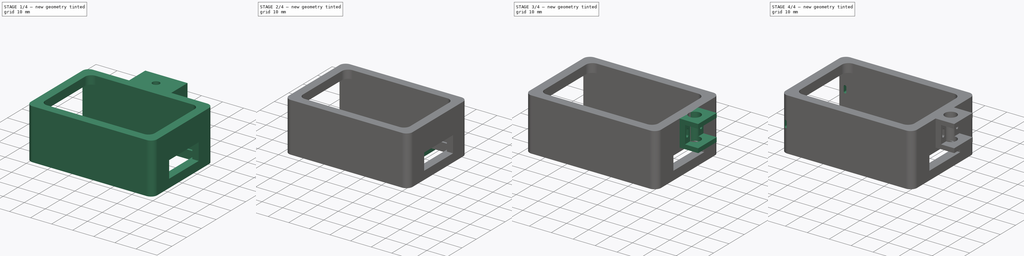
[diagram: build sequence overview — one tinted view per stage of 4, left to right]
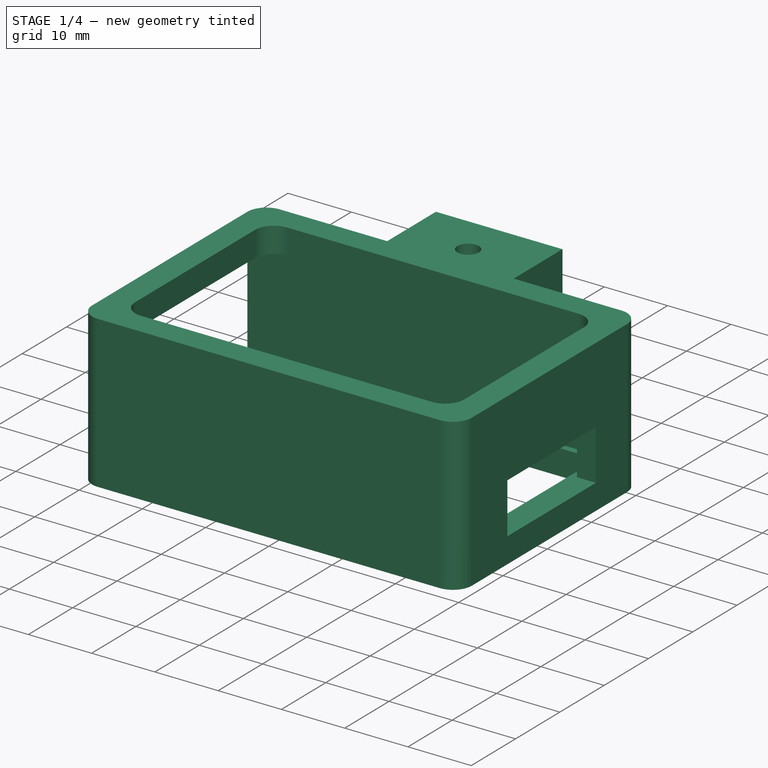
[diagram: stage 1 of 4 — iso view after this stage's code; geometry added in this stage tinted green]
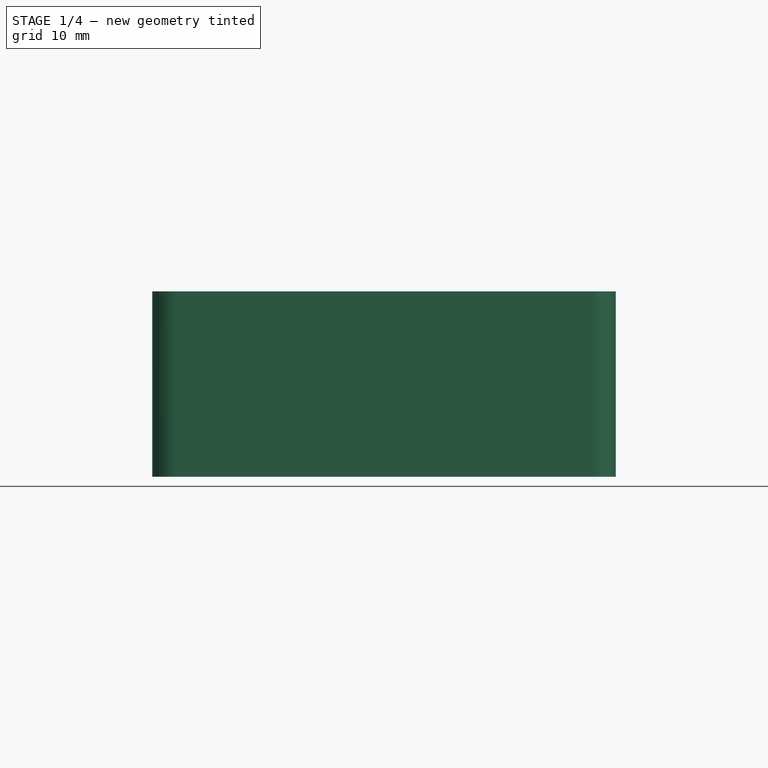
[diagram: stage 1 of 4 — front view after this stage's code; geometry added in this stage tinted green]
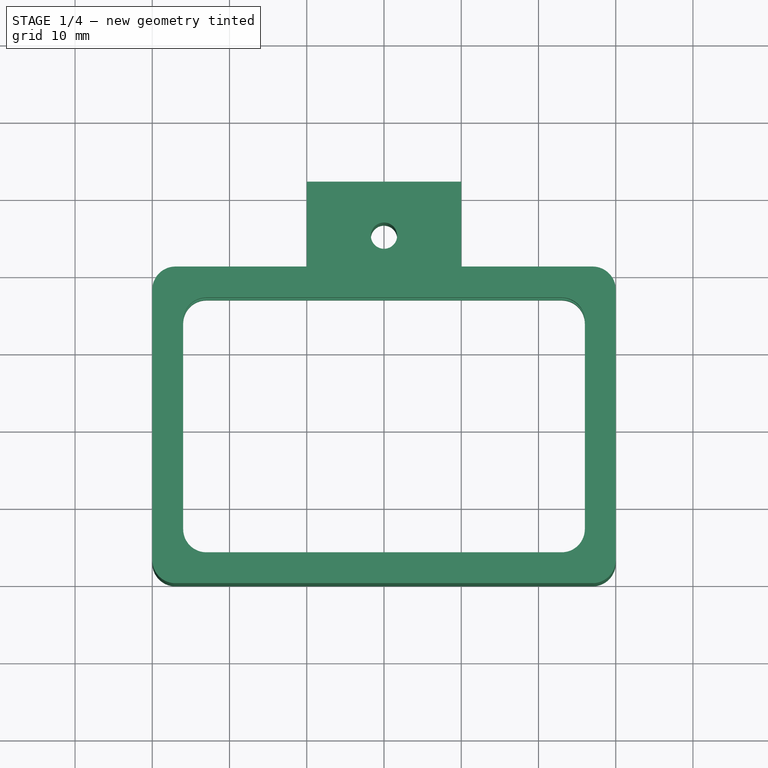
[diagram: stage 1 of 4 — top view after this stage's code; geometry added in this stage tinted green]
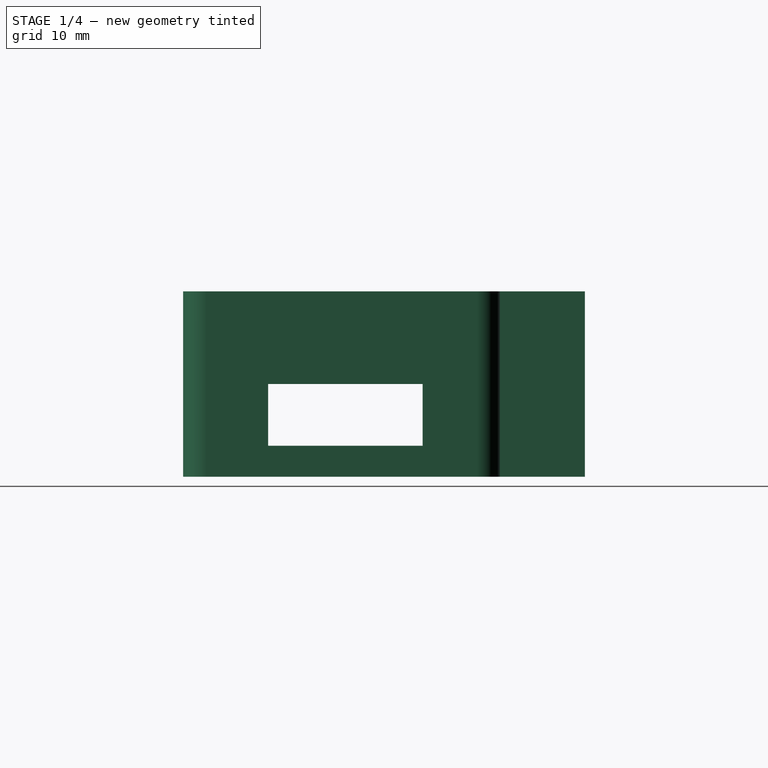
[diagram: stage 1 of 4 — right view after this stage's code; geometry added in this stage tinted green]
FCSTD DOCUMENT  (FreeCAD 0.14R3700 (Git))
Label: RemotoControlBoxV1
License: CC-BY 3.0
LicenseURL: http://creativecommons.org/licenses/by/3.0/
objects: Sketcher::SketchObject×13, PartDesign::Pocket×10, PartDesign::Pad×3
note: 39 computed .brp shape members not serialized (recipe doc carries the construction recipe); baked Part::Feature solids carry a one-line shape summary decoded from their .brp

FEATURE [Sketcher::SketchObject] Sketch
  sketch-geometry (33):
    g0: LineSegment StartX=7 StartY=4 StartZ=0 EndX=53 EndY=4 EndZ=0
    g1: LineSegment StartX=56 StartY=7 StartZ=0 EndX=56 EndY=34 EndZ=0
    g2: LineSegment StartX=53 StartY=37 StartZ=0 EndX=7 EndY=37 EndZ=0
    g3: LineSegment StartX=4 StartY=34 StartZ=0 EndX=4 EndY=7 EndZ=0
    g4: LineSegment StartX=3 StartY=41 StartZ=0 EndX=20 EndY=41 EndZ=0
    g5: LineSegment StartX=60 StartY=38 StartZ=0 EndX=60 EndY=3 EndZ=0
    g6: LineSegment StartX=57 StartY=0 StartZ=0 EndX=3 EndY=0 EndZ=0
    g7: LineSegment StartX=0 StartY=3 StartZ=0 EndX=0 EndY=38 EndZ=0
    g8: ArcOfCircle CenterX=7 CenterY=7 CenterZ=0 NormalX=0 NormalY=0 NormalZ=1 Radius=3 StartAngle=3.14159 EndAngle=4.71239
    g9: ArcOfCircle CenterX=7 CenterY=34 CenterZ=0 NormalX=0 NormalY=0 NormalZ=1 Radius=3 StartAngle=1.5708 EndAngle=3.14159
    g10: ArcOfCircle CenterX=3 CenterY=38 CenterZ=0 NormalX=0 NormalY=0 NormalZ=1 Radius=3 StartAngle=1.5708 EndAngle=3.14159
    g11: ArcOfCircle CenterX=57 CenterY=38 CenterZ=0 NormalX=0 NormalY=0 NormalZ=1 Radius=3 StartAngle=0 EndAngle=1.5708
    g12: ArcOfCircle CenterX=53 CenterY=34 CenterZ=0 NormalX=0 NormalY=0 NormalZ=1 Radius=3 StartAngle=0 EndAngle=1.5708
    g13: ArcOfCircle CenterX=53 CenterY=7 CenterZ=0 NormalX=0 NormalY=0 NormalZ=1 Radius=3 StartAngle=4.71239 EndAngle=6.28319
    g14: ArcOfCircle CenterX=57 CenterY=3 CenterZ=0 NormalX=0 NormalY=0 NormalZ=1 Radius=3 StartAngle=4.71239 EndAngle=6.28319
    g15: ArcOfCircle CenterX=3 CenterY=3 CenterZ=0 NormalX=0 NormalY=0 NormalZ=1 Radius=3 StartAngle=3.14159 EndAngle=4.71239
    g16: LineSegment [constr] StartX=4 StartY=7 StartZ=0 EndX=4 EndY=4 EndZ=0
    g17: LineSegment [constr] StartX=4 StartY=4 StartZ=0 EndX=7 EndY=4 EndZ=0
    g18: LineSegment [constr] StartX=4 StartY=34 StartZ=0 EndX=4 EndY=37 EndZ=0
    g19: LineSegment [constr] StartX=4 StartY=37 StartZ=0 EndX=7 EndY=37 EndZ=0
    g20: LineSegment [constr] StartX=53 StartY=37 StartZ=0 EndX=56 EndY=37 EndZ=0
    g21: LineSegment [constr] StartX=56 StartY=37 StartZ=0 EndX=56 EndY=34 EndZ=0
    g22: LineSegment [constr] StartX=56 StartY=7 StartZ=0 EndX=56 EndY=4 EndZ=0
    g23: LineSegment [constr] StartX=56 StartY=4 StartZ=0 EndX=53 EndY=4 EndZ=0
    g24: LineSegment [constr] StartX=3 StartY=0 StartZ=0 EndX=0 EndY=0 EndZ=0
    g25: LineSegment [constr] StartX=0 StartY=0 StartZ=0 EndX=0 EndY=3 EndZ=0
    g26: LineSegment [constr] StartX=57 StartY=41 StartZ=0 EndX=60 EndY=41 EndZ=0
    g27: LineSegment [constr] StartX=60 StartY=41 StartZ=0 EndX=60 EndY=38 EndZ=0
    g28: LineSegment StartX=20 StartY=52 StartZ=0 EndX=40 EndY=52 EndZ=0
    g29: LineSegment StartX=40 StartY=52 StartZ=0 EndX=40 EndY=41 EndZ=0
    g30: LineSegment StartX=20 StartY=41 StartZ=0 EndX=20 EndY=52 EndZ=0
    g31: LineSegment StartX=40 StartY=41 StartZ=0 EndX=57 EndY=41 EndZ=0
    g32: Circle CenterX=30 CenterY=45 CenterZ=0 NormalX=0 NormalY=0 NormalZ=1 Radius=1.7
  constraints (83):
    c: Horizontal(g0)
    c: Horizontal(g2)
    c: Vertical(g1)
    c: Vertical(g3)
    c: Horizontal(g4)
    c: Horizontal(g6)
    c: Vertical(g5)
    c: Vertical(g7)
    c: Tangent(g3,g8)
    c: Tangent(g0,g8)
    c: Tangent(g3,g9)
    c: Tangent(g2,g9)
    c: Tangent(g7,g10)
    c: Tangent(g4,g10)
    c: Tangent(g31,g11)
    c: Tangent(g5,g11)
    c: Tangent(g2,g12)
    c: Tangent(g1,g12)
    c: Tangent(g0,g13)
    c: Tangent(g1,g13)
    c: Tangent(g6,g14)
    c: Tangent(g5,g14)
    c: Tangent(g7,g15)
    c: Tangent(g6,g15)
    c: Radius(g15) = 3
    c: Equal(g15,g8)
    c: Equal(g8,g9)
    c: Equal(g9,g10)
    c: Equal(g10,g12)
    c: Equal(g12,g11)
    c: Equal(g11,g13)
    c: Equal(g13,g14)
    c: Coincident(g16,g17)
    c: Coincident(g18,g19)
    c: Coincident(g20,g21)
    c: Horizontal(g20)
    c: Vertical(g21)
    c: Coincident(g22,g23)
    c: Horizontal(g23)
    c: Vertical(g22)
    c: Vertical(g16)
    c: Vertical(g18)
    c: Horizontal(g19)
    c: Horizontal(g17)
    c: Coincident(g16,g3)
    c: Coincident(g0,g17)
    c: Coincident(g18,g3)
    c: Coincident(g19,g2)
    c: Coincident(g20,g2)
    c: Coincident(g0,g23)
    c: Coincident(g1,g22)
    c: Coincident(g1,g21)
    c: Coincident(g24,g25)
    c: Horizontal(g24)
    c: Vertical(g25)
    c: Coincident(g26,g27)
    c: Horizontal(g26)
    c: Vertical(g27)
    c: Coincident(g7,g25)
    c: Coincident(g24,g6)
    c: Coincident(g26,g31)
    c: Coincident(g5,g27)
    c: DistanceX(g20,g26) = 4
    c: DistanceY(g2,g31) = 4
    c: DistanceX(g7,g3) = 4
    c: DistanceY(g6,g0) = 4
    c: DistanceX(g16,g22) = 52
    c: DistanceY(g16,g18) = 33
    c: Coincident(g24,g-1)
    c: Coincident(g28,g29)
    c: Coincident(g30,g28)
    c: Horizontal(g28)
    c: Vertical(g29)
    c: Vertical(g30)
    c: Coincident(g4,g30)
    c: Coincident(g31,g29)
    c: Tangent(g4,g31)
    c: DistanceY(g28,g29) = -11
    c: DistanceX(g4,g29) = 20
    c: DistanceX(g26,g28) = -20
    c: Radius(g32) = 1.7
    c: DistanceY(g32,g28) = 7
    c: DistanceX(g28,g32) = 10
FEATURE [PartDesign::Pad] Pad
  Length = 24
  Length2 = 3
  Sketch = -> Sketch
  Type = 0
FEATURE [Sketcher::SketchObject] Sketch001
  ExternalGeometry = -> [Pad]
  Placement = pos=(0,0,0) rot=(0.57735,-0.57735,-0.57735;2.0944rad)
  Support = -> Pad [Face1]
  sketch-geometry (4):
    g0: LineSegment StartX=-38 StartY=20 StartZ=0 EndX=-3 EndY=20 EndZ=0
    g1: LineSegment StartX=-3 StartY=20 StartZ=0 EndX=-3 EndY=4 EndZ=0
    g2: LineSegment StartX=-3 StartY=4 StartZ=0 EndX=-38 EndY=4 EndZ=0
    g3: LineSegment StartX=-38 StartY=4 StartZ=0 EndX=-38 EndY=20 EndZ=0
  constraints (12):
    c: Coincident(g0,g1)
    c: Coincident(g1,g2)
    c: Coincident(g2,g3)
    c: Coincident(g3,g0)
    c: Horizontal(g0)
    c: Horizontal(g2)
    c: Vertical(g1)
    c: Vertical(g3)
    c: PointOnObject(g1,g-4)
    c: PointOnObject(g2,g-3)
    c: DistanceY(g2,g-3) = -4
    c: DistanceY(g-4,g0) = -4
FEATURE [PartDesign::Pocket] Pocket
  Length = 57
  Sketch = -> Sketch001
  Type = 0
FEATURE [Sketcher::SketchObject] Sketch002
  Placement = pos=(60,0,0) rot=(0.57735,0.57735,0.57735;2.0944rad)
  Support = -> Pocket [Face12]
  sketch-geometry (4):
    g0: LineSegment StartX=11 StartY=12 StartZ=0 EndX=31 EndY=12 EndZ=0
    g1: LineSegment StartX=31 StartY=12 StartZ=0 EndX=31 EndY=4 EndZ=0
    g2: LineSegment StartX=31 StartY=4 StartZ=0 EndX=11 EndY=4 EndZ=0
    g3: LineSegment StartX=11 StartY=4 StartZ=0 EndX=11 EndY=12 EndZ=0
  constraints (9):
    c: Coincident(g0,g1)
    c: Coincident(g1,g2)
    c: Coincident(g2,g3)
    c: Coincident(g3,g0)
    c: Horizontal(g0)
    c: Horizontal(g2)
    c: Vertical(g1)
    c: Vertical(g3)
    c: DistanceY(g0,g2) = -8
FEATURE [PartDesign::Pocket] Pocket001
  Length = 5
  Sketch = -> Sketch002
  Type = 0
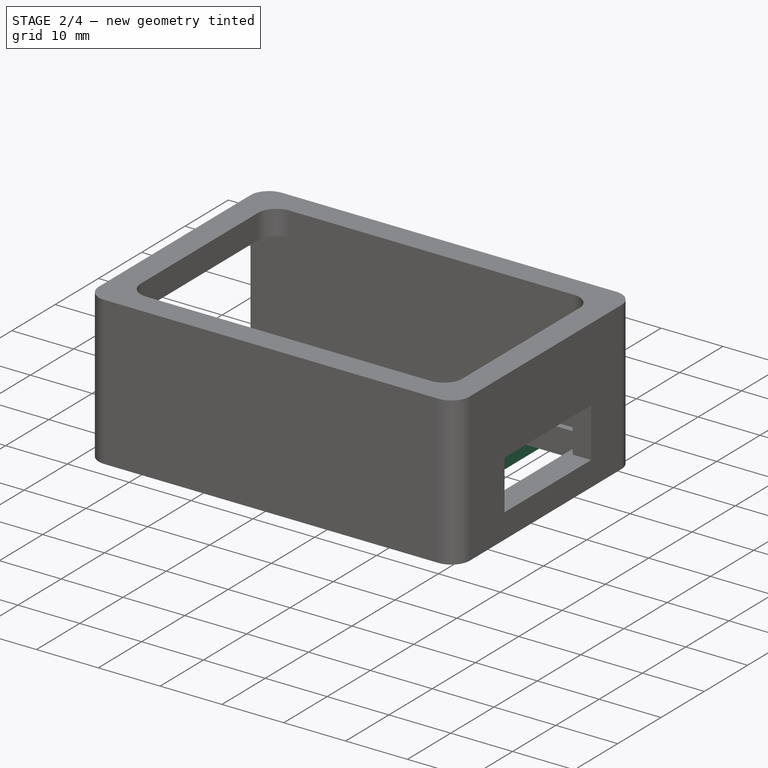
[diagram: stage 2 of 4 — iso view after this stage's code; geometry added in this stage tinted green]
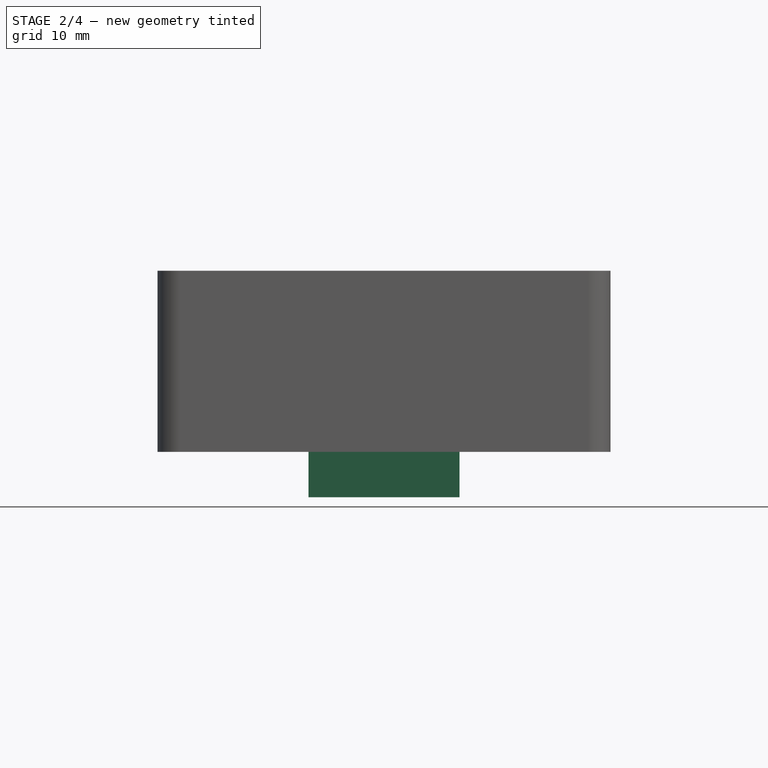
[diagram: stage 2 of 4 — front view after this stage's code; geometry added in this stage tinted green]
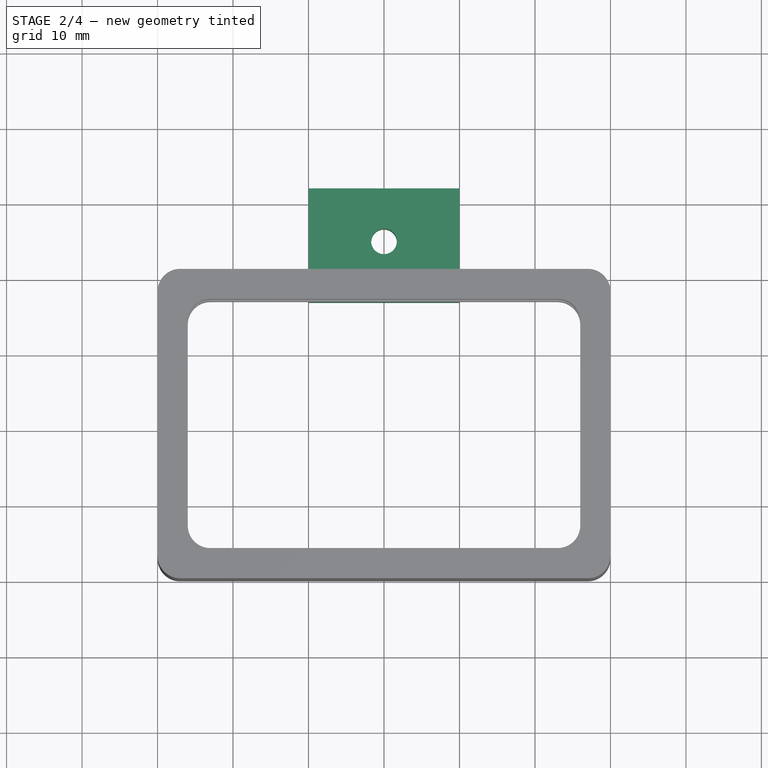
[diagram: stage 2 of 4 — top view after this stage's code; geometry added in this stage tinted green]
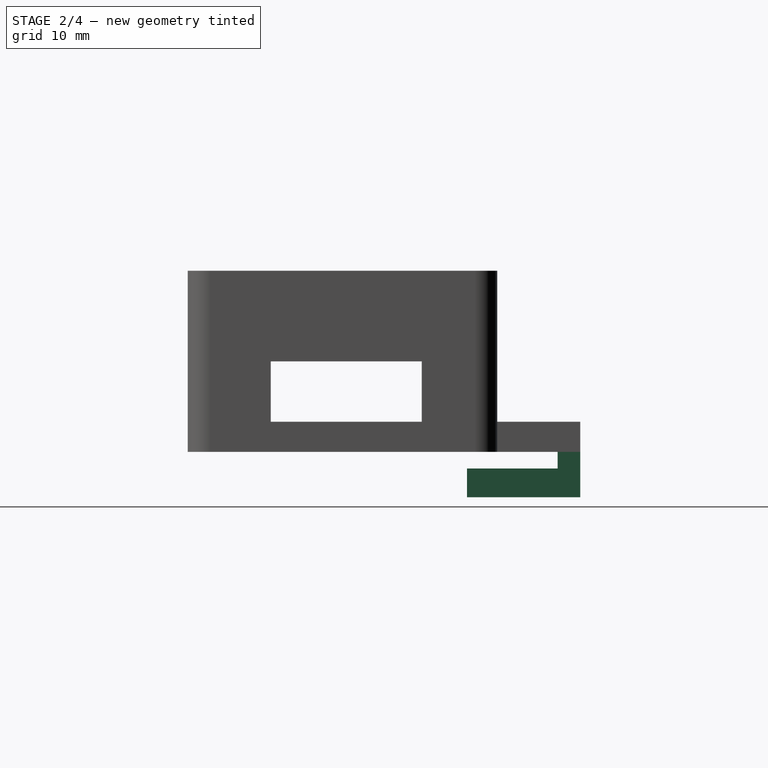
[diagram: stage 2 of 4 — right view after this stage's code; geometry added in this stage tinted green]
FEATURE [Sketcher::SketchObject] Sketch003
  ExternalGeometry = -> [Pocket001]
  Placement = pos=(20,0,0) rot=(0.57735,-0.57735,-0.57735;2.0944rad)
  Support = -> Pocket001 [Face7]
  sketch-geometry (4):
    g0: LineSegment StartX=-52 StartY=24 StartZ=0 EndX=-41 EndY=24 EndZ=0
    g1: LineSegment StartX=-41 StartY=24 StartZ=0 EndX=-41 EndY=4 EndZ=0
    g2: LineSegment StartX=-41 StartY=4 StartZ=0 EndX=-52 EndY=4 EndZ=0
    g3: LineSegment StartX=-52 StartY=4 StartZ=0 EndX=-52 EndY=24 EndZ=0
  constraints (11):
    c: Coincident(g0,g1)
    c: Coincident(g1,g2)
    c: Coincident(g2,g3)
    c: Coincident(g3,g0)
    c: Horizontal(g0)
    c: Horizontal(g2)
    c: Vertical(g1)
    c: Vertical(g3)
    c: Coincident(g0,g-4)
    c: Coincident(g0,g-3)
    c: DistanceY(g-4,g2) = 4
FEATURE [PartDesign::Pocket] Pocket002
  Length = 5
  Sketch = -> Sketch003
  Type = 1
FEATURE [Sketcher::SketchObject] Sketch004
  ExternalGeometry = -> [Pocket002]
  Placement = pos=(0,0,0) rot=(1,0,0;3.14159rad)
  Support = -> Pocket002 [Face2]
  sketch-geometry (5):
    g0: LineSegment StartX=20 StartY=-52 StartZ=0 EndX=40 EndY=-52 EndZ=0
    g1: LineSegment StartX=40 StartY=-52 StartZ=0 EndX=40 EndY=-37 EndZ=0
    g2: LineSegment StartX=40 StartY=-37 StartZ=0 EndX=20 EndY=-37 EndZ=0
    g3: LineSegment StartX=20 StartY=-37 StartZ=0 EndX=20 EndY=-52 EndZ=0
    g4: Circle CenterX=30 CenterY=-45 CenterZ=0 NormalX=0 NormalY=0 NormalZ=1 Radius=1.7
  constraints (13):
    c: Coincident(g0,g1)
    c: Coincident(g1,g2)
    c: Coincident(g2,g3)
    c: Coincident(g3,g0)
    c: Horizontal(g0)
    c: Horizontal(g2)
    c: Vertical(g1)
    c: Vertical(g3)
    c: Coincident(g0,g-3)
    c: Coincident(g0,g-3)
    c: PointOnObject(g2,g-4)
    c: Equal(g4,g-5)
    c: Coincident(g4,g-5)
FEATURE [PartDesign::Pad] Pad001
  Length = 6
  Length2 = 3
  Sketch = -> Sketch004
  Type = 0
FEATURE [Sketcher::SketchObject] Sketch005
  ExternalGeometry = -> [Pad001]
  Placement = pos=(40,0,0) rot=(0.57735,0.57735,0.57735;2.0944rad)
  Support = -> Pad001 [Face16]
  sketch-geometry (4):
    g0: LineSegment StartX=49 StartY=0 StartZ=0 EndX=37 EndY=0 EndZ=0
    g1: LineSegment StartX=37 StartY=0 StartZ=0 EndX=37 EndY=-2.2 EndZ=0
    g2: LineSegment StartX=37 StartY=-2.2 StartZ=0 EndX=49 EndY=-2.2 EndZ=0
    g3: LineSegment StartX=49 StartY=-2.2 StartZ=0 EndX=49 EndY=0 EndZ=0
  constraints (12):
    c: Coincident(g0,g1)
    c: Coincident(g1,g2)
    c: Coincident(g2,g3)
    c: Coincident(g3,g0)
    c: Horizontal(g0)
    c: Horizontal(g2)
    c: Vertical(g1)
    c: Vertical(g3)
    c: DistanceY(g3) = 2.2
    c: PointOnObject(g0,g-4)
    c: DistanceX(g-3,g1) = 0
    c: DistanceX(g-3,g2) = -3
FEATURE [PartDesign::Pocket] Pocket003
  Length = 0
  Sketch = -> Sketch005
  Type = 1
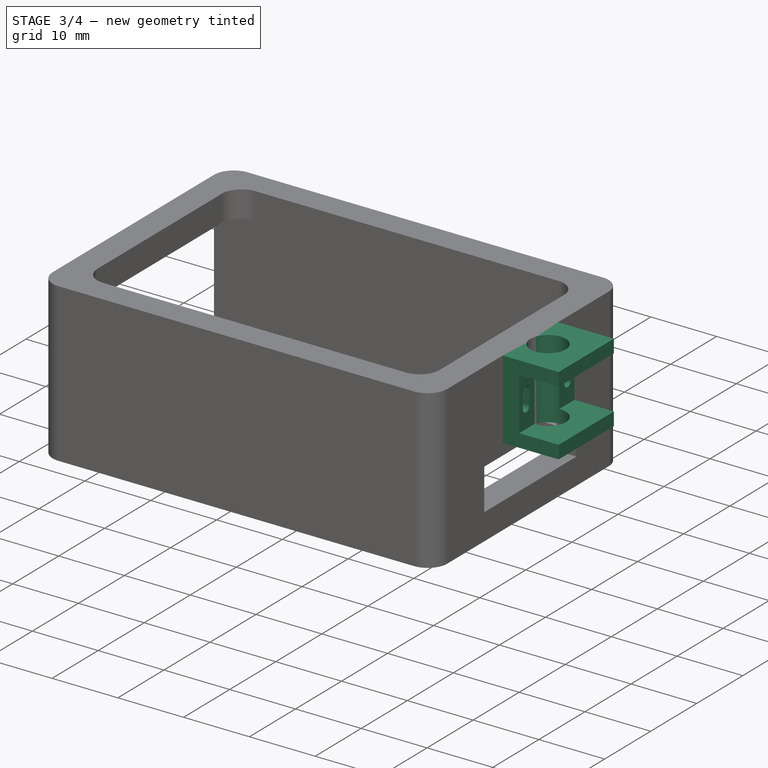
[diagram: stage 3 of 4 — iso view after this stage's code; geometry added in this stage tinted green]
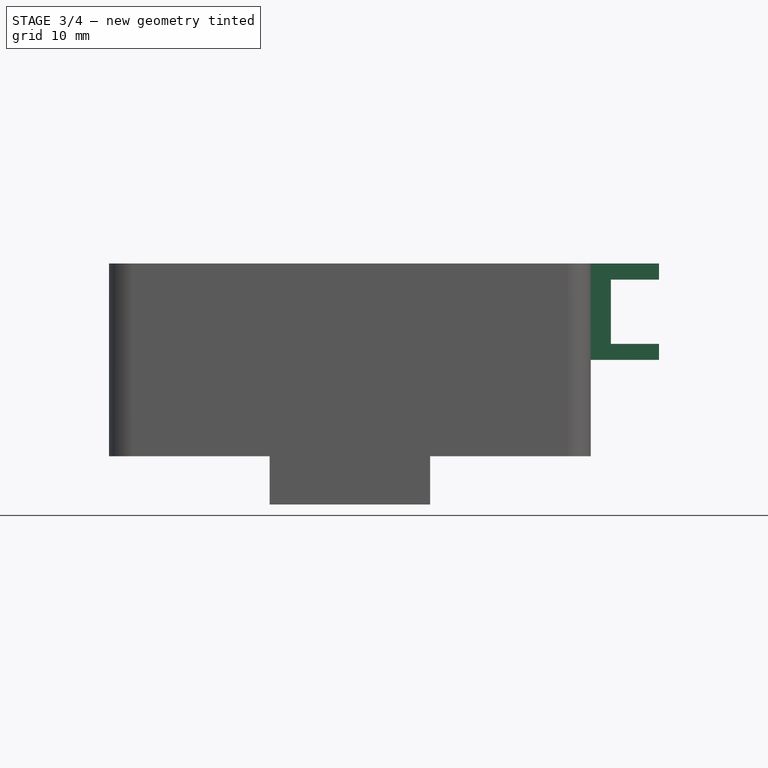
[diagram: stage 3 of 4 — front view after this stage's code; geometry added in this stage tinted green]
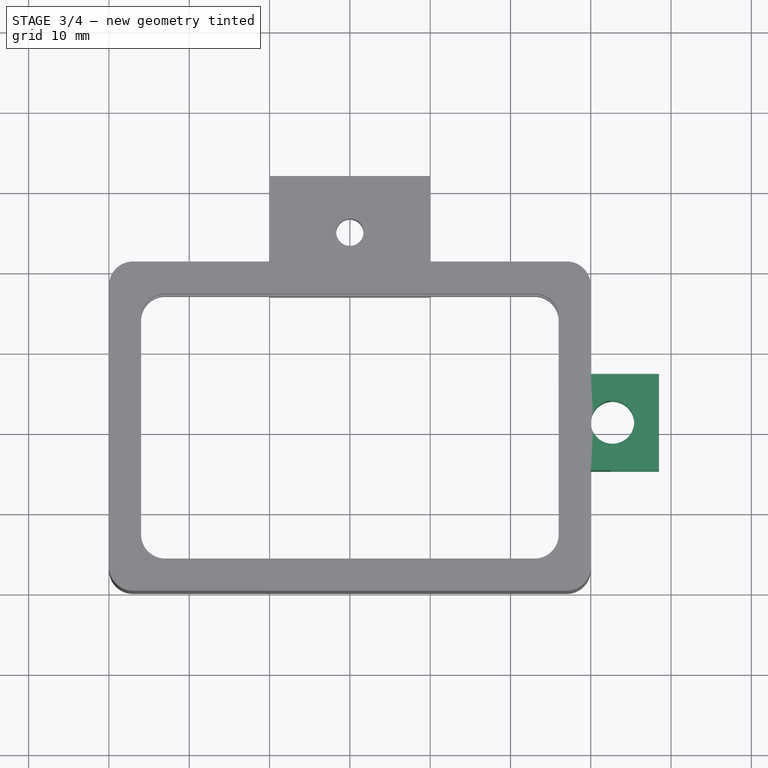
[diagram: stage 3 of 4 — top view after this stage's code; geometry added in this stage tinted green]
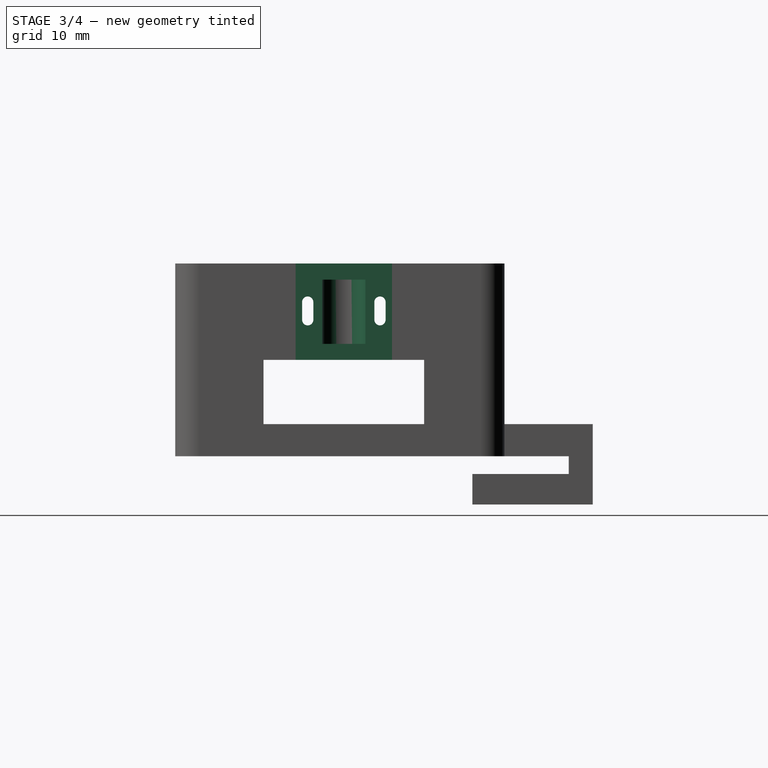
[diagram: stage 3 of 4 — right view after this stage's code; geometry added in this stage tinted green]
FEATURE [Sketcher::SketchObject] Sketch006
  ExternalGeometry = -> [Pocket003]
  Placement = pos=(60,0,0) rot=(0.57735,0.57735,0.57735;2.0944rad)
  Support = -> Pocket003 [Face18]
  sketch-geometry (4):
    g0: LineSegment StartX=15 StartY=24 StartZ=0 EndX=27 EndY=24 EndZ=0
    g1: LineSegment StartX=27 StartY=24 StartZ=0 EndX=27 EndY=12 EndZ=0
    g2: LineSegment StartX=27 StartY=12 StartZ=0 EndX=15 EndY=12 EndZ=0
    g3: LineSegment StartX=15 StartY=12 StartZ=0 EndX=15 EndY=24 EndZ=0
  constraints (12):
    c: Coincident(g0,g1)
    c: Coincident(g1,g2)
    c: Coincident(g2,g3)
    c: Coincident(g3,g0)
    c: Horizontal(g0)
    c: Horizontal(g2)
    c: Vertical(g1)
    c: Vertical(g3)
    c: PointOnObject(g2,g-4)
    c: PointOnObject(g0,g-3)
    c: DistanceX(g2,g1) = 12
    c: DistanceX(g1,g-4) = 4
FEATURE [PartDesign::Pad] Pad002
  Length = 8.5
  Length2 = 3
  Sketch = -> Sketch006
  Type = 0
FEATURE [Sketcher::SketchObject] Sketch007
  ExternalGeometry = -> [Pad002]
  Placement = pos=(0,0,24) rot=(0,0,1;0rad)
  Support = -> Pad002 [Face41]
  sketch-geometry (1):
    g0: Circle CenterX=62.7 CenterY=21 CenterZ=0 NormalX=0 NormalY=0 NormalZ=1 Radius=2.7
  constraints (3):
    c: Radius(g0) = 2.7
    c: Tangent(g0,g-3)
    c: DistanceY(g0,g-3) = -6
FEATURE [PartDesign::Pocket] Pocket004
  Length = 5
  Sketch = -> Sketch007
  Type = 1
FEATURE [Sketcher::SketchObject] Sketch008
  ExternalGeometry = -> [Pocket004]
  Placement = pos=(68.5,0,0) rot=(0.57735,0.57735,0.57735;2.0944rad)
  Support = -> Pocket004 [Face52]
  sketch-geometry (4):
    g0: LineSegment StartX=15 StartY=22 StartZ=0 EndX=27 EndY=22 EndZ=0
    g1: LineSegment StartX=27 StartY=22 StartZ=0 EndX=27 EndY=14 EndZ=0
    g2: LineSegment StartX=27 StartY=14 StartZ=0 EndX=15 EndY=14 EndZ=0
    g3: LineSegment StartX=15 StartY=14 StartZ=0 EndX=15 EndY=22 EndZ=0
  constraints (12):
    c: Coincident(g0,g1)
    c: Coincident(g1,g2)
    c: Coincident(g2,g3)
    c: Coincident(g3,g0)
    c: Horizontal(g0)
    c: Horizontal(g2)
    c: Vertical(g1)
    c: Vertical(g3)
    c: PointOnObject(g2,g-3)
    c: PointOnObject(g1,g-4)
    c: DistanceY(g0,g-3) = 2
    c: DistanceY(g2,g-3) = -2
FEATURE [PartDesign::Pocket] Pocket005
  Length = 6
  Sketch = -> Sketch008
  Type = 0
FEATURE [Sketcher::SketchObject] Sketch009
  ExternalGeometry = -> [Pocket005]
  Placement = pos=(62.5,0,0) rot=(0.57735,0.57735,0.57735;2.0944rad)
  Support = -> Pocket005 [Face53]
  sketch-geometry (8):
    g0: ArcOfCircle CenterX=16.5 CenterY=19.2 CenterZ=0 NormalX=0 NormalY=0 NormalZ=1 Radius=0.7 StartAngle=6.28319 EndAngle=9.42478
    g1: ArcOfCircle CenterX=16.5 CenterY=17 CenterZ=0 NormalX=0 NormalY=0 NormalZ=1 Radius=0.7 StartAngle=3.14159 EndAngle=6.28319
    g2: LineSegment StartX=15.8 StartY=19.2 StartZ=0 EndX=15.8 EndY=17 EndZ=0
    g3: LineSegment StartX=17.2 StartY=19.2 StartZ=0 EndX=17.2 EndY=17 EndZ=0
    g4: ArcOfCircle CenterX=25.5 CenterY=19.2 CenterZ=0 NormalX=0 NormalY=0 NormalZ=1 Radius=0.7 StartAngle=6.28318 EndAngle=9.42478
    g5: ArcOfCircle CenterX=25.5 CenterY=17 CenterZ=0 NormalX=0 NormalY=0 NormalZ=1 Radius=0.7 StartAngle=3.14159 EndAngle=6.28318
    g6: LineSegment StartX=24.8 StartY=19.2 StartZ=0 EndX=24.8 EndY=17 EndZ=0
    g7: LineSegment StartX=26.2 StartY=19.2 StartZ=0 EndX=26.2 EndY=17 EndZ=0
  constraints (28):
    c: Tangent(g0,g2)
    c: Tangent(g0,g3)
    c: Tangent(g1,g2)
    c: Tangent(g1,g3)
    c: Coincident(g0,g3)
    c: Coincident(g0,g2)
    c: Coincident(g2,g1)
    c: Coincident(g3,g1)
    c: Vertical(g2)
    c: Equal(g0,g1)
    c: Radius(g1) = 0.7
    c: DistanceY(g0,g1) = -2.2
    c: Tangent(g4,g6)
    c: Tangent(g4,g7)
    c: Tangent(g5,g6)
    c: Tangent(g5,g7)
    c: Coincident(g4,g7)
    c: Coincident(g4,g6)
    c: Coincident(g6,g5)
    c: Coincident(g7,g5)
    c: Vertical(g6)
    c: Equal(g4,g5)
    c: Equal(g3,g6)
    c: DistanceY(g1,g5) = 0
    c: Equal(g1,g5)
    c: DistanceY(g-3,g5) = 3
    c: DistanceX(g5,g-3) = 0.8
    c: DistanceX(g1,g-3) = -0.8
FEATURE [PartDesign::Pocket] Pocket006
  Length = 10
  Sketch = -> Sketch009
  Type = 0
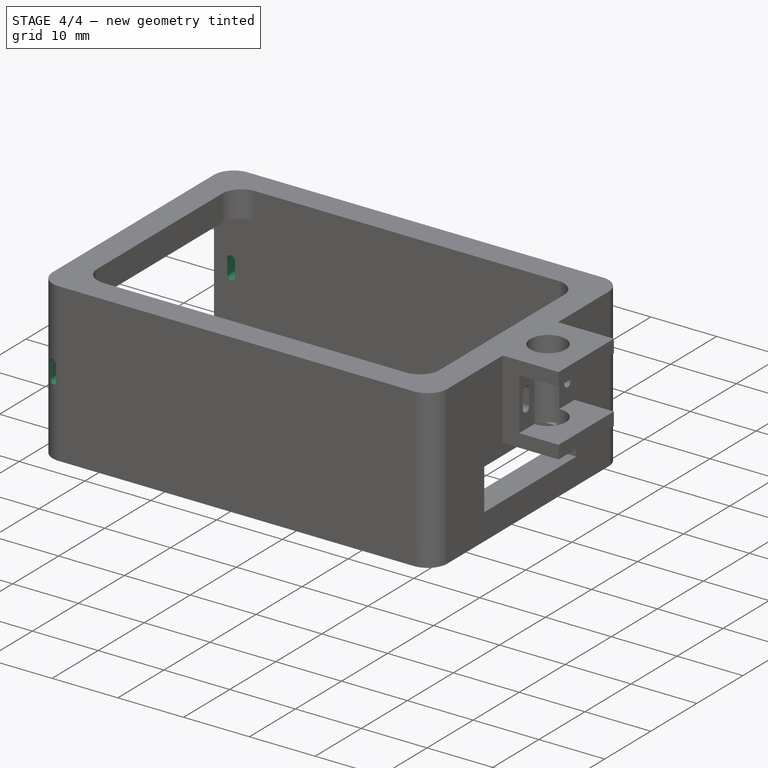
[diagram: stage 4 of 4 — iso view after this stage's code; geometry added in this stage tinted green]
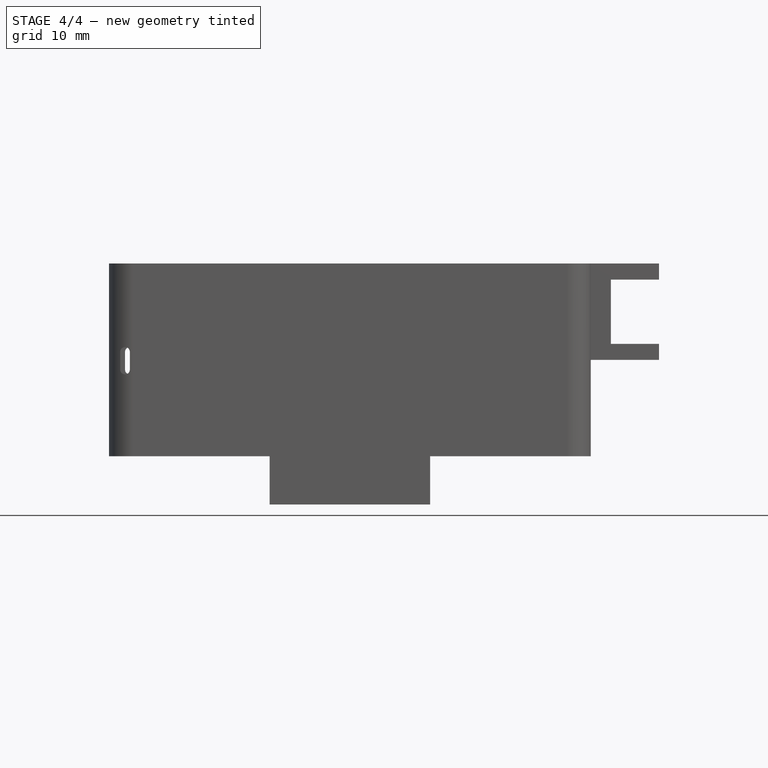
[diagram: stage 4 of 4 — front view after this stage's code; geometry added in this stage tinted green]
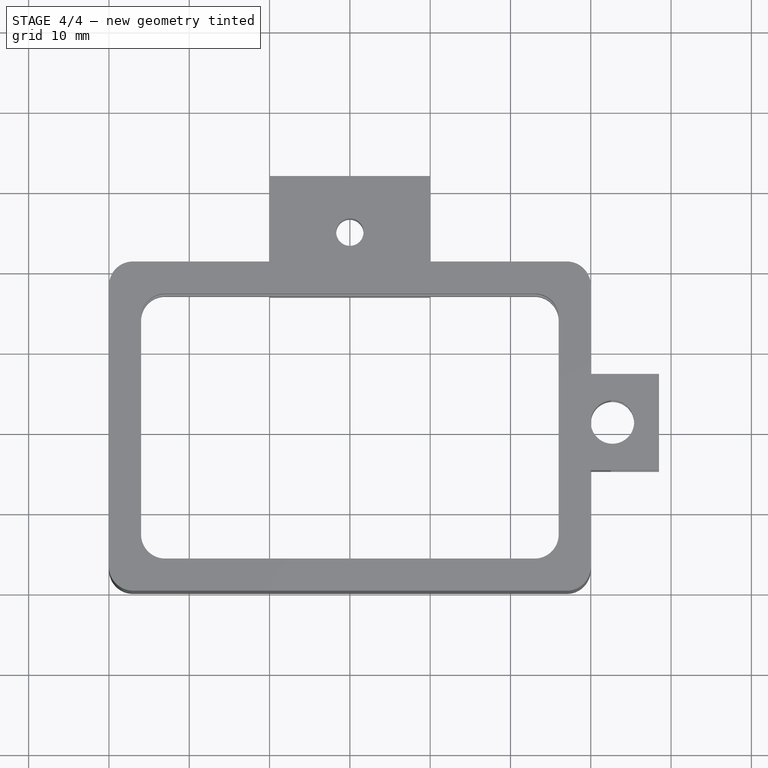
[diagram: stage 4 of 4 — top view after this stage's code; geometry added in this stage tinted green]
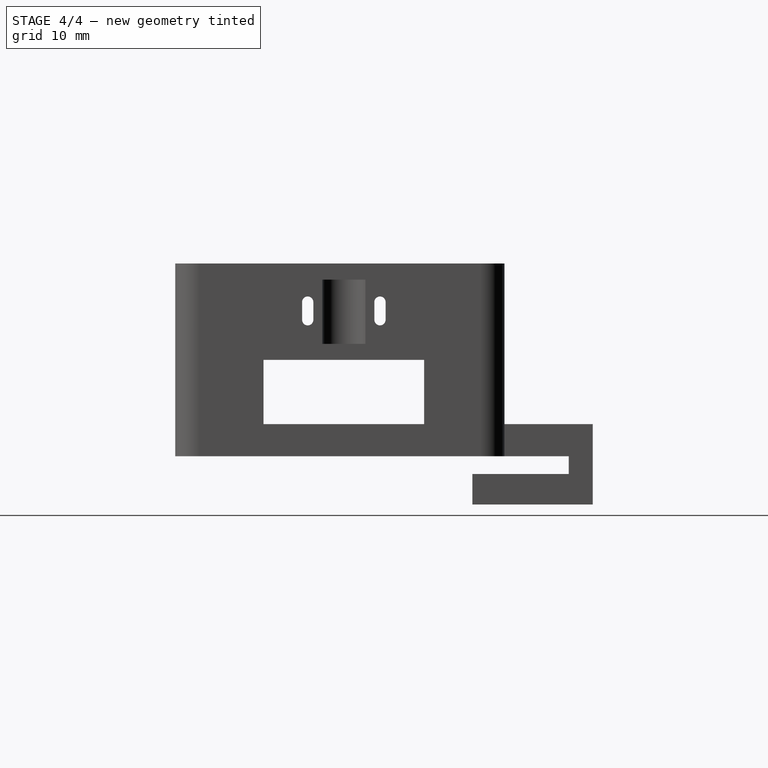
[diagram: stage 4 of 4 — right view after this stage's code; geometry added in this stage tinted green]
FEATURE [Sketcher::SketchObject] Sketch010
  ExternalGeometry = -> [Pocket006]
  Placement = pos=(57,0,0) rot=(0.57735,-0.57735,-0.57735;2.0944rad)
  Support = -> Pocket006 [Face27]
  sketch-geometry (4):
    g0: LineSegment StartX=-24.8 StartY=19.2 StartZ=0 EndX=-17.2 EndY=19.2 EndZ=0
    g1: LineSegment StartX=-17.2 StartY=19.2 StartZ=0 EndX=-17.2 EndY=17 EndZ=0
    g2: LineSegment StartX=-17.2 StartY=17 StartZ=0 EndX=-24.8 EndY=17 EndZ=0
    g3: LineSegment StartX=-24.8 StartY=17 StartZ=0 EndX=-24.8 EndY=19.2 EndZ=0
  constraints (15):
    c: Coincident(g0,g1)
    c: Coincident(g1,g2)
    c: Coincident(g2,g3)
    c: Coincident(g3,g0)
    c: Horizontal(g0)
    c: Horizontal(g2)
    c: Vertical(g1)
    c: Vertical(g3)
    c: Coincident(g1,g2)
    c: Coincident(g1,g-3)
    c: Coincident(g2,g-4)
    c: Coincident(g0,g3)
    c: Coincident(g0,g-4)
    c: Coincident(g0,g1)
    c: Coincident(g0,g-3)
FEATURE [PartDesign::Pocket] Pocket007
  Length = 2
  Sketch = -> Sketch010
  Type = 0
FEATURE [Sketcher::SketchObject] Sketch011
  ExternalGeometry = -> [Pocket007]
  Placement = pos=(0,3,0) rot=(0,0.707107,0.707107;3.14159rad)
  Support = -> Pocket007 [Face22]
  sketch-geometry (4):
    g0: ArcOfCircle CenterX=-2 CenterY=13 CenterZ=0 NormalX=0 NormalY=0 NormalZ=1 Radius=0.6 StartAngle=6.28317 EndAngle=9.42479
    g1: ArcOfCircle CenterX=-2 CenterY=10.8 CenterZ=0 NormalX=0 NormalY=0 NormalZ=1 Radius=0.6 StartAngle=3.1416 EndAngle=6.28318
    g2: LineSegment StartX=-2.6 StartY=13 StartZ=0 EndX=-2.6 EndY=10.8 EndZ=0
    g3: LineSegment StartX=-1.4 StartY=13 StartZ=0 EndX=-1.4 EndY=10.8 EndZ=0
  constraints (14):
    c: Tangent(g0,g2)
    c: Tangent(g0,g3)
    c: Tangent(g1,g2)
    c: Tangent(g1,g3)
    c: Coincident(g0,g3)
    c: Coincident(g0,g2)
    c: Coincident(g2,g1)
    c: Coincident(g3,g1)
    c: Vertical(g2)
    c: Equal(g0,g1)
    c: Radius(g1) = 0.6
    c: DistanceY(g0,g1) = -2.2
    c: DistanceX(g0,g-3) = 2
    c: DistanceY(g-3,g0) = -7
FEATURE [PartDesign::Pocket] Pocket008
  Length = 5
  Sketch = -> Sketch011
  Type = 1
FEATURE [Sketcher::SketchObject] Sketch012
  ExternalGeometry = -> [Pocket008]
  Placement = pos=(0,38,0) rot=(1,0,0;1.5708rad)
  Support = -> Pocket008 [Face30]
  sketch-geometry (4):
    g0: ArcOfCircle CenterX=2.6 CenterY=13 CenterZ=0 NormalX=0 NormalY=0 NormalZ=1 Radius=0.6 StartAngle=6.28318 EndAngle=9.42478
    g1: ArcOfCircle CenterX=2.6 CenterY=10.8 CenterZ=0 NormalX=0 NormalY=0 NormalZ=1 Radius=0.6 StartAngle=3.14159 EndAngle=6.28319
    g2: LineSegment StartX=2 StartY=13 StartZ=0 EndX=2 EndY=10.8 EndZ=0
    g3: LineSegment StartX=3.2 StartY=13 StartZ=0 EndX=3.2 EndY=10.8 EndZ=0
  constraints (14):
    c: Tangent(g0,g2)
    c: Tangent(g0,g3)
    c: Tangent(g1,g2)
    c: Tangent(g1,g3)
    c: Coincident(g0,g3)
    c: Coincident(g0,g2)
    c: Coincident(g2,g1)
    c: Coincident(g3,g1)
    c: Vertical(g2)
    c: Equal(g0,g1)
    c: DistanceY(g1,g0) = 2.2
    c: Radius(g0) = 0.6
    c: DistanceX(g-3,g1) = 2
    c: DistanceY(g0,g-3) = 7
FEATURE [PartDesign::Pocket] Pocket009
  Length = 5
  Sketch = -> Sketch012
  Type = 0
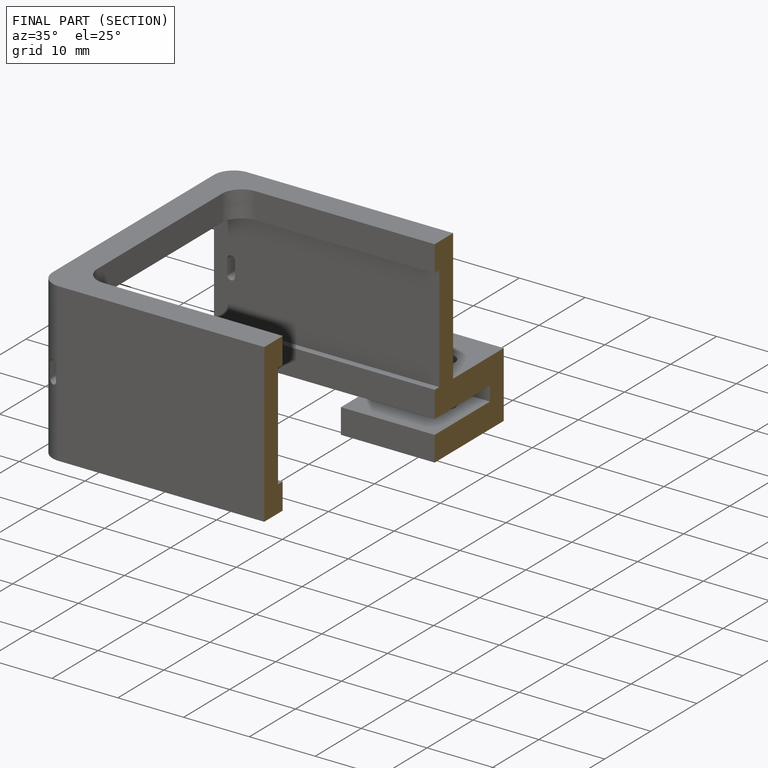
[diagram: finished part — half-section view (interior)]
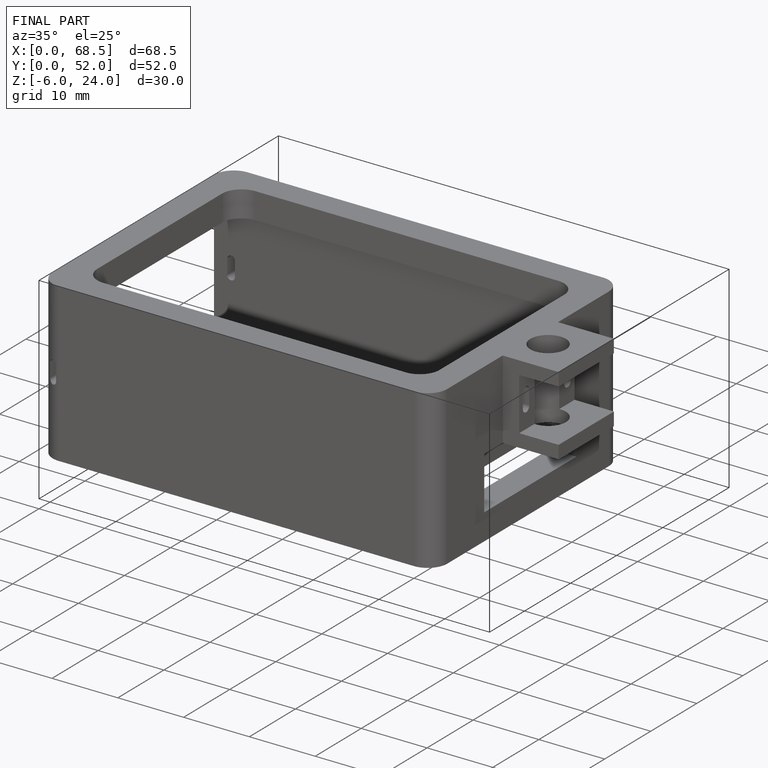
[diagram: finished part — iso view with bounding-box wireframe]
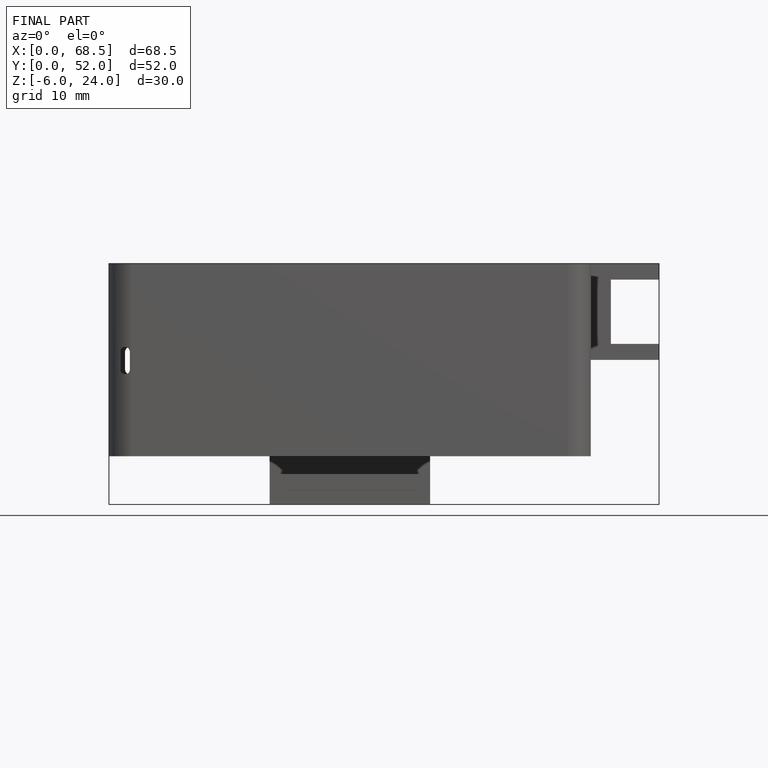
[diagram: finished part — front view with bounding-box wireframe]
